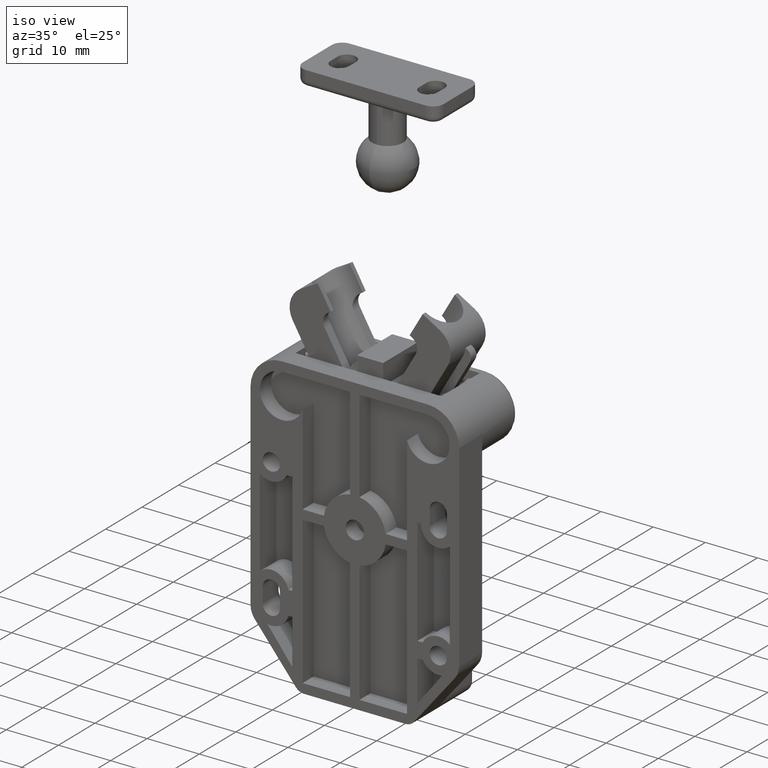
[diagram: clean part render]
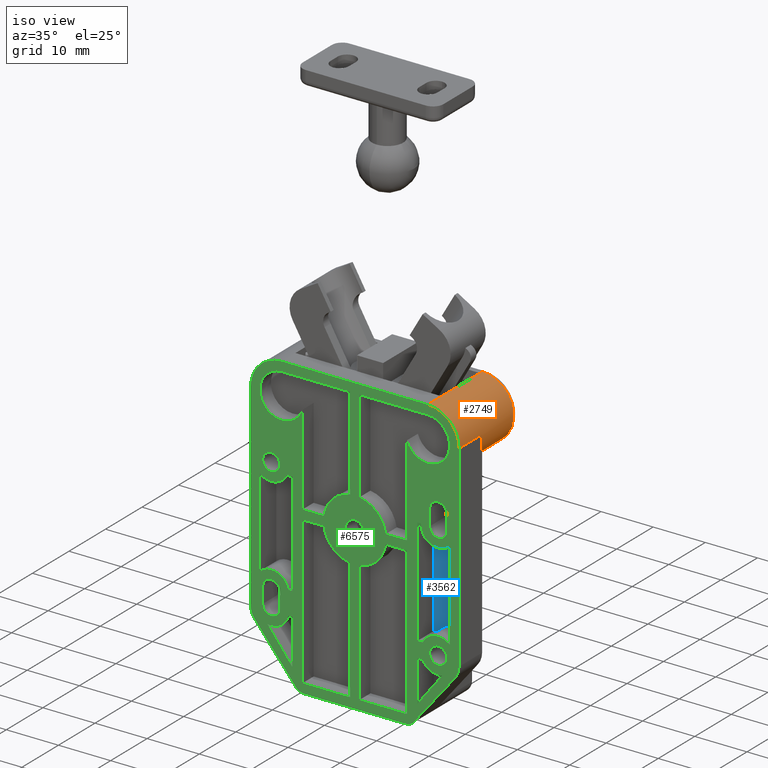
[diagram: same view with three faces highlighted in distinct colors, each labeled with its STEP entity id]
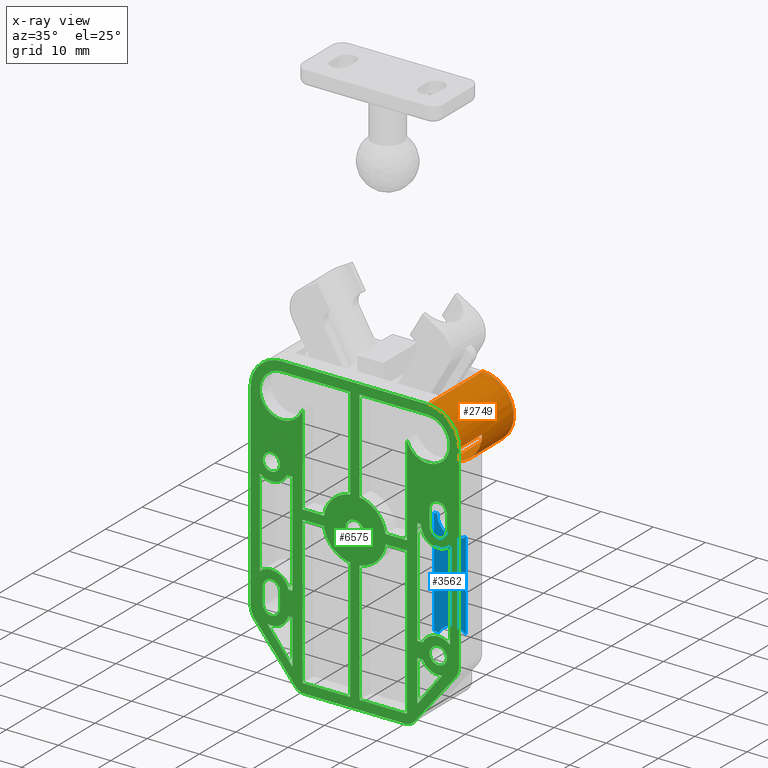
[diagram: x-ray of the same camera — body ghosted, the three highlighted faces saturated]
A machine part, iso view with three faces highlighted in distinct colors.
The next image is the same camera in x-ray (body ghosted, the three faces saturated) — at least one of them is partly hidden behind the body in this view.
Their STEP definitions:

[orange] entity #2749 — the highlighted cylindrical surface (partial cylindrical patch) has radius 6 mm, axis along (0, -1, -0).
#45 = VERTEX_POINT ( 'NONE', #1997 ) ;
#48 = DIRECTION ( 'NONE',  ( 0.0000000000000000000, 0.0000000000000000000, -1.000000000000000000 ) ) ;
#64 = CARTESIAN_POINT ( 'NONE',  ( 50.99960000000000100, 14.00000000000000000, 6.500000000000158100 ) ) ;
#182 = VERTEX_POINT ( 'NONE', #4506 ) ;
#351 = LINE ( 'NONE', #1067, #7697 ) ;
#404 = DIRECTION ( 'NONE',  ( -1.000000000000000000, 0.0000000000000000000, 0.0000000000000000000 ) ) ;
#420 = CIRCLE ( 'NONE', #7194, 6.000000000000116400 ) ;
#467 = ORIENTED_EDGE ( 'NONE', *, *, #6299, .F. ) ;
#646 = CARTESIAN_POINT ( 'NONE',  ( 50.99960000000000100, 14.00000000000000000, 0.0000000000000000000 ) ) ;
#726 = DIRECTION ( 'NONE',  ( 0.0000000000000000000, 0.0000000000000000000, -1.000000000000000000 ) ) ;
#768 = ORIENTED_EDGE ( 'NONE', *, *, #7652, .T. ) ;
#868 = VERTEX_POINT ( 'NONE', #5509 ) ;
#1067 = CARTESIAN_POINT ( 'NONE',  ( 50.99960000000000100, 20.00000000000000000, 6.500000000000158100 ) ) ;
#1131 = EDGE_CURVE ( 'NONE', #868, #7403, #420, .T. ) ;
#1249 = EDGE_CURVE ( 'NONE', #182, #7403, #2993, .T. ) ;
#1351 = DIRECTION ( 'NONE',  ( -1.000000000000000000, 0.0000000000000000000, 0.0000000000000000000 ) ) ;
#1364 = EDGE_CURVE ( 'NONE', #182, #45, #8276, .T. ) ;
#1439 = EDGE_LOOP ( 'NONE', ( #5055, #2593, #8249, #768, #8466, #5971, #467, #6947 ) ) ;
#1461 = EDGE_CURVE ( 'NONE', #5708, #7474, #2739, .T. ) ;
#1505 = CARTESIAN_POINT ( 'NONE',  ( 44.99959999999999400, 13.99999999999976400, 6.300000000000158800 ) ) ;
#1997 = CARTESIAN_POINT ( 'NONE',  ( 56.99960000000000100, 14.00000000000000000, 15.00000000000000000 ) ) ;
#2593 = ORIENTED_EDGE ( 'NONE', *, *, #1249, .F. ) ;
#2739 = LINE ( 'NONE', #7871, #7604 ) ;
#2749 = ADVANCED_FACE ( 'NONE', ( #2983 ), #6450, .T. ) ;
#2983 = FACE_OUTER_BOUND ( 'NONE', #1439, .T. ) ;
#2993 = LINE ( 'NONE', #3305, #6686 ) ;
#3112 = VERTEX_POINT ( 'NONE', #8073 ) ;
#3142 = DIRECTION ( 'NONE',  ( 0.0000000000000000000, 0.0000000000000000000, -1.000000000000000000 ) ) ;
#3305 = CARTESIAN_POINT ( 'NONE',  ( 44.99959999999998700, 14.00000000000021500, 16.00000000000000000 ) ) ;
#3609 = VECTOR ( 'NONE', #6650, 1000.000000000000000 ) ;
#3661 = VECTOR ( 'NONE', #726, 1000.000000000000000 ) ;
#3822 = CARTESIAN_POINT ( 'NONE',  ( 50.99959999999999400, 13.99999999999976400, 6.300000000000158800 ) ) ;
#3914 = CARTESIAN_POINT ( 'NONE',  ( 50.99960000000000100, 20.00000000000000000, 0.0000000000000000000 ) ) ;
#3952 = CARTESIAN_POINT ( 'NONE',  ( 56.99960000000000100, 14.00000000000000000, 0.0000000000000000000 ) ) ;
#3969 = EDGE_CURVE ( 'NONE', #5708, #3112, #6118, .T. ) ;
#4041 = VERTEX_POINT ( 'NONE', #3914 ) ;
#4298 = DIRECTION ( 'NONE',  ( 1.000000000000000000, 0.0000000000000000000, 0.0000000000000000000 ) ) ;
#4506 = CARTESIAN_POINT ( 'NONE',  ( 44.99959999999998700, 14.00000000000021500, 15.00000000000000000 ) ) ;
#4908 = DIRECTION ( 'NONE',  ( -1.000000000000000000, 0.0000000000000000000, 0.0000000000000000000 ) ) ;
#5055 = ORIENTED_EDGE ( 'NONE', *, *, #1131, .T. ) ;
#5323 = CARTESIAN_POINT ( 'NONE',  ( 50.99960000000000100, 14.00000000000000000, 15.00000000000000000 ) ) ;
#5471 = DIRECTION ( 'NONE',  ( 0.0000000000000000000, 0.0000000000000000000, -1.000000000000000000 ) ) ;
#5509 = CARTESIAN_POINT ( 'NONE',  ( 50.99960000000000100, 19.99999999999988300, 6.300000000000158800 ) ) ;
#5512 = LINE ( 'NONE', #8318, #3661 ) ;
#5602 = AXIS2_PLACEMENT_3D ( 'NONE', #5323, #7262, #404 ) ;
#5708 = VERTEX_POINT ( 'NONE', #7400 ) ;
#5945 = CARTESIAN_POINT ( 'NONE',  ( 56.99960000000000100, 14.00000000000000000, 14.24999999999999100 ) ) ;
#5971 = ORIENTED_EDGE ( 'NONE', *, *, #1461, .T. ) ;
#6118 = LINE ( 'NONE', #5945, #3609 ) ;
#6299 = EDGE_CURVE ( 'NONE', #4041, #7474, #7161, .T. ) ;
#6361 = DIRECTION ( 'NONE',  ( 0.0000000000000000000, -0.0000000000000000000, 1.000000000000000000 ) ) ;
#6450 = CYLINDRICAL_SURFACE ( 'NONE', #8313, 5.999999999999998200 ) ;
#6650 = DIRECTION ( 'NONE',  ( -0.0000000000000000000, -0.0000000000000000000, 1.000000000000000000 ) ) ;
#6686 = VECTOR ( 'NONE', #8708, 1000.000000000000000 ) ;
#6924 = AXIS2_PLACEMENT_3D ( 'NONE', #646, #5471, #1351 ) ;
#6947 = ORIENTED_EDGE ( 'NONE', *, *, #7007, .F. ) ;
#7007 = EDGE_CURVE ( 'NONE', #868, #4041, #351, .T. ) ;
#7161 = CIRCLE ( 'NONE', #6924, 5.999999999999998200 ) ;
#7179 = DIRECTION ( 'NONE',  ( 0.0000000000000000000, 0.0000000000000000000, -1.000000000000000000 ) ) ;
#7194 = AXIS2_PLACEMENT_3D ( 'NONE', #3822, #6361, #4298 ) ;
#7262 = DIRECTION ( 'NONE',  ( -0.0000000000000000000, -0.0000000000000000000, -1.000000000000000000 ) ) ;
#7400 = CARTESIAN_POINT ( 'NONE',  ( 56.99960000000000100, 14.00000000000000000, 3.749999999999996400 ) ) ;
#7403 = VERTEX_POINT ( 'NONE', #1505 ) ;
#7474 = VERTEX_POINT ( 'NONE', #3952 ) ;
#7604 = VECTOR ( 'NONE', #7179, 1000.000000000000000 ) ;
#7652 = EDGE_CURVE ( 'NONE', #45, #3112, #5512, .T. ) ;
#7697 = VECTOR ( 'NONE', #3142, 1000.000000000000000 ) ;
#7871 = CARTESIAN_POINT ( 'NONE',  ( 56.99960000000000100, 14.00000000000000000, 6.500000000000158100 ) ) ;
#8073 = CARTESIAN_POINT ( 'NONE',  ( 56.99960000000000100, 14.00000000000000000, 14.24999999999999100 ) ) ;
#8249 = ORIENTED_EDGE ( 'NONE', *, *, #1364, .T. ) ;
#8276 = CIRCLE ( 'NONE', #5602, 5.999999999999998200 ) ;
#8313 = AXIS2_PLACEMENT_3D ( 'NONE', #64, #48, #4908 ) ;
#8318 = CARTESIAN_POINT ( 'NONE',  ( 56.99960000000000100, 14.00000000000000000, 6.500000000000158100 ) ) ;
#8466 = ORIENTED_EDGE ( 'NONE', *, *, #3969, .F. ) ;
#8708 = DIRECTION ( 'NONE',  ( -0.0000000000000000000, -0.0000000000000000000, -1.000000000000000000 ) ) ;

[blue] entity #3562 — the highlighted planar face has unit normal (-0, 1, 0).
#78 = CARTESIAN_POINT ( 'NONE',  ( 15.50000000000000000, 12.00000000000000000, 4.500000000000089700 ) ) ;
#169 = CARTESIAN_POINT ( 'NONE',  ( 35.99960000000000100, 16.00000000000000000, 4.500000000000089700 ) ) ;
#435 = ORIENTED_EDGE ( 'NONE', *, *, #7764, .T. ) ;
#506 = DIRECTION ( 'NONE',  ( 0.0000000000000000000, -1.000000000000000000, 0.0000000000000000000 ) ) ;
#602 = CARTESIAN_POINT ( 'NONE',  ( 35.99960000000000100, 12.00000000000000000, 4.500000000000089700 ) ) ;
#691 = LINE ( 'NONE', #78, #7822 ) ;
#798 = EDGE_CURVE ( 'NONE', #6732, #5613, #2784, .T. ) ;
#866 = DIRECTION ( 'NONE',  ( 1.000000000000000000, 0.0000000000000000000, 0.0000000000000000000 ) ) ;
#992 = CARTESIAN_POINT ( 'NONE',  ( 14.00000000000000000, 16.00000000000000000, 4.500000000000089700 ) ) ;
#1064 = CARTESIAN_POINT ( 'NONE',  ( 35.99960000000000100, 16.00000000000000000, 4.500000000000089700 ) ) ;
#1081 = EDGE_CURVE ( 'NONE', #7297, #8146, #7997, .T. ) ;
#1291 = ORIENTED_EDGE ( 'NONE', *, *, #5797, .T. ) ;
#1373 = FACE_OUTER_BOUND ( 'NONE', #7819, .T. ) ;
#1413 = EDGE_CURVE ( 'NONE', #4561, #3436, #5988, .T. ) ;
#1414 = CIRCLE ( 'NONE', #6662, 3.350000000000019600 ) ;
#1497 = DIRECTION ( 'NONE',  ( 1.000000000000000000, 0.0000000000000000000, 0.0000000000000000000 ) ) ;
#1661 = ORIENTED_EDGE ( 'NONE', *, *, #1081, .T. ) ;
#1779 = CARTESIAN_POINT ( 'NONE',  ( 35.99960000000000100, 12.64999999999998400, 4.500000000000089700 ) ) ;
#2053 = CARTESIAN_POINT ( 'NONE',  ( 33.47323898066800000, 18.19999999999999900, 4.500000000000089700 ) ) ;
#2457 = CARTESIAN_POINT ( 'NONE',  ( 16.52636101933195100, 18.19999999999999900, 4.500000000000089700 ) ) ;
#2525 = VECTOR ( 'NONE', #506, 1000.000000000000000 ) ;
#2655 = DIRECTION ( 'NONE',  ( 1.000000000000000000, 0.0000000000000000000, 0.0000000000000000000 ) ) ;
#2687 = DIRECTION ( 'NONE',  ( 1.000000000000000000, 0.0000000000000000000, 0.0000000000000000000 ) ) ;
#2773 = EDGE_CURVE ( 'NONE', #5613, #7297, #8522, .T. ) ;
#2784 = CIRCLE ( 'NONE', #3374, 3.350000000000000500 ) ;
#3276 = CARTESIAN_POINT ( 'NONE',  ( 32.64959999999997800, 16.00000000000000000, 4.500000000000089700 ) ) ;
#3371 = CARTESIAN_POINT ( 'NONE',  ( 14.00000000000000000, 16.00000000000000000, 4.500000000000089700 ) ) ;
#3374 = AXIS2_PLACEMENT_3D ( 'NONE', #992, #4071, #2687 ) ;
#3436 = VERTEX_POINT ( 'NONE', #6673 ) ;
#3496 = CARTESIAN_POINT ( 'NONE',  ( 15.50000000000000000, 13.00458683984995800, 4.500000000000089700 ) ) ;
#3562 = ADVANCED_FACE ( 'NONE', ( #1373 ), #7524, .F. ) ;
#3796 = LINE ( 'NONE', #602, #7042 ) ;
#3891 = AXIS2_PLACEMENT_3D ( 'NONE', #3371, #8222, #4062 ) ;
#4062 = DIRECTION ( 'NONE',  ( 1.000000000000000000, 0.0000000000000000000, -0.0000000000000000000 ) ) ;
#4071 = DIRECTION ( 'NONE',  ( 0.0000000000000000000, -0.0000000000000000000, 1.000000000000000000 ) ) ;
#4561 = VERTEX_POINT ( 'NONE', #1779 ) ;
#5014 = DIRECTION ( 'NONE',  ( 0.0000000000000000000, -0.0000000000000000000, 1.000000000000000000 ) ) ;
#5049 = AXIS2_PLACEMENT_3D ( 'NONE', #1064, #5719, #2655 ) ;
#5285 = CARTESIAN_POINT ( 'NONE',  ( 35.99960000000000100, 12.65000000000000000, 4.500000000000089700 ) ) ;
#5381 = DIRECTION ( 'NONE',  ( -1.000000000000000000, 0.0000000000000000000, 0.0000000000000000000 ) ) ;
#5393 = ORIENTED_EDGE ( 'NONE', *, *, #798, .T. ) ;
#5600 = DIRECTION ( 'NONE',  ( 0.0000000000000000000, 1.000000000000000000, 0.0000000000000000000 ) ) ;
#5613 = VERTEX_POINT ( 'NONE', #2457 ) ;
#5719 = DIRECTION ( 'NONE',  ( 0.0000000000000000000, -0.0000000000000000000, 1.000000000000000000 ) ) ;
#5797 = EDGE_CURVE ( 'NONE', #3436, #8800, #3796, .T. ) ;
#5988 = LINE ( 'NONE', #5285, #2525 ) ;
#6662 = AXIS2_PLACEMENT_3D ( 'NONE', #169, #5014, #866 ) ;
#6673 = CARTESIAN_POINT ( 'NONE',  ( 35.99960000000000100, 12.00000000000000000, 4.500000000000089700 ) ) ;
#6732 = VERTEX_POINT ( 'NONE', #3496 ) ;
#6766 = EDGE_CURVE ( 'NONE', #8800, #6732, #691, .T. ) ;
#7042 = VECTOR ( 'NONE', #5381, 1000.000000000000000 ) ;
#7297 = VERTEX_POINT ( 'NONE', #2053 ) ;
#7390 = ORIENTED_EDGE ( 'NONE', *, *, #6766, .T. ) ;
#7524 = PLANE ( 'NONE',  #3891 ) ;
#7764 = EDGE_CURVE ( 'NONE', #8146, #4561, #1414, .T. ) ;
#7819 = EDGE_LOOP ( 'NONE', ( #5393, #8456, #1661, #435, #8703, #1291, #7390 ) ) ;
#7822 = VECTOR ( 'NONE', #5600, 1000.000000000000000 ) ;
#7997 = CIRCLE ( 'NONE', #5049, 3.350000000000019600 ) ;
#8100 = VECTOR ( 'NONE', #1497, 1000.000000000000000 ) ;
#8146 = VERTEX_POINT ( 'NONE', #3276 ) ;
#8222 = DIRECTION ( 'NONE',  ( 0.0000000000000000000, -0.0000000000000000000, 1.000000000000000000 ) ) ;
#8404 = CARTESIAN_POINT ( 'NONE',  ( 16.52636101933195100, 18.19999999999999900, 4.500000000000089700 ) ) ;
#8456 = ORIENTED_EDGE ( 'NONE', *, *, #2773, .T. ) ;
#8522 = LINE ( 'NONE', #8404, #8100 ) ;
#8703 = ORIENTED_EDGE ( 'NONE', *, *, #1413, .T. ) ;
#8800 = VERTEX_POINT ( 'NONE', #8869 ) ;
#8869 = CARTESIAN_POINT ( 'NONE',  ( 15.50000000000000000, 12.00000000000000000, 4.500000000000089700 ) ) ;

[green] entity #6575 — the highlighted planar face has unit normal (0, -1, -0).
#17 = ORIENTED_EDGE ( 'NONE', *, *, #4462, .F. ) ;
#39 = DIRECTION ( 'NONE',  ( 0.0000000000000000000, 0.0000000000000000000, -1.000000000000000000 ) ) ;
#40 = CARTESIAN_POINT ( 'NONE',  ( 14.00000000000000000, -15.99999999999975100, 0.0000000000000000000 ) ) ;
#47 = ORIENTED_EDGE ( 'NONE', *, *, #3544, .F. ) ;
#66 = EDGE_CURVE ( 'NONE', #6678, #2012, #2782, .T. ) ;
#68 = EDGE_CURVE ( 'NONE', #4791, #6971, #6471, .T. ) ;
#72 = CARTESIAN_POINT ( 'NONE',  ( 10.98538064580037200, -19.21702782616135600, 0.0000000000000000000 ) ) ;
#82 = DIRECTION ( 'NONE',  ( -1.000000000000000000, 0.0000000000000000000, 0.0000000000000000000 ) ) ;
#118 = ORIENTED_EDGE ( 'NONE', *, *, #8340, .F. ) ;
#120 = VECTOR ( 'NONE', #2224, 1000.000000000000000 ) ;
#138 = VECTOR ( 'NONE', #3526, 1000.000000000000000 ) ;
#141 = EDGE_CURVE ( 'NONE', #757, #6994, #3974, .T. ) ;
#153 = LINE ( 'NONE', #1648, #2010 ) ;
#160 = CARTESIAN_POINT ( 'NONE',  ( 14.00000000000000000, -16.00000000000000000, -0.0000000000000000000 ) ) ;
#217 = EDGE_CURVE ( 'NONE', #5777, #8439, #8987, .T. ) ;
#227 = CIRCLE ( 'NONE', #7222, 1.650000000000010800 ) ;
#234 = CIRCLE ( 'NONE', #3711, 2.000000000000029300 ) ;
#262 = CARTESIAN_POINT ( 'NONE',  ( 4.586200000000000700, 12.00000000000000000, 0.0000000000000000000 ) ) ;
#263 = ORIENTED_EDGE ( 'NONE', *, *, #4990, .T. ) ;
#277 = CARTESIAN_POINT ( 'NONE',  ( 32.39960000000000000, 5.932115979985550100, 0.0000000000000000000 ) ) ;
#279 = EDGE_CURVE ( 'NONE', #8817, #8782, #1618, .T. ) ;
#284 = DIRECTION ( 'NONE',  ( 1.000000000000000000, 0.0000000000000000000, 0.0000000000000000000 ) ) ;
#297 = DIRECTION ( 'NONE',  ( 0.0000000000000000000, 0.0000000000000000000, -1.000000000000000000 ) ) ;
#323 = VERTEX_POINT ( 'NONE', #5722 ) ;
#339 = CARTESIAN_POINT ( 'NONE',  ( 17.00000000000000000, -17.64999999999999900, 0.0000000000000000000 ) ) ;
#381 = AXIS2_PLACEMENT_3D ( 'NONE', #7612, #3449, #8317 ) ;
#392 = DIRECTION ( 'NONE',  ( -0.0000000000000000000, -0.0000000000000000000, -1.000000000000000000 ) ) ;
#428 = VERTEX_POINT ( 'NONE', #1014 ) ;
#440 = VECTOR ( 'NONE', #1211, 999.9999999999998900 ) ;
#464 = DIRECTION ( 'NONE',  ( 0.0000000000000000000, -1.000000000000000000, 0.0000000000000000000 ) ) ;
#501 = CARTESIAN_POINT ( 'NONE',  ( 30.59960000000000200, -10.00000000000000000, -0.0000000000000000000 ) ) ;
#567 = CIRCLE ( 'NONE', #6351, 1.650000000000099400 ) ;
#573 = VERTEX_POINT ( 'NONE', #1582 ) ;
#580 = EDGE_CURVE ( 'NONE', #3814, #3215, #4524, .T. ) ;
#582 = AXIS2_PLACEMENT_3D ( 'NONE', #7166, #5763, #3708 ) ;
#611 = AXIS2_PLACEMENT_3D ( 'NONE', #7368, #3217, #8080 ) ;
#618 = DIRECTION ( 'NONE',  ( 0.0000000000000000000, -0.0000000000000000000, 1.000000000000000000 ) ) ;
#619 = CARTESIAN_POINT ( 'NONE',  ( 33.47323898066800000, 18.19999999999999900, 0.0000000000000000000 ) ) ;
#621 = EDGE_CURVE ( 'NONE', #1625, #7180, #855, .T. ) ;
#639 = CARTESIAN_POINT ( 'NONE',  ( 17.74999999999999600, -12.73503445653710000, 0.0000000000000000000 ) ) ;
#646 = CARTESIAN_POINT ( 'NONE',  ( 50.99960000000000100, 14.00000000000000000, 0.0000000000000000000 ) ) ;
#647 = VERTEX_POINT ( 'NONE', #8880 ) ;
#649 = VECTOR ( 'NONE', #3669, 1000.000000000000000 ) ;
#669 = AXIS2_PLACEMENT_3D ( 'NONE', #2653, #7491, #3342 ) ;
#677 = FACE_BOUND ( 'NONE', #3146, .T. ) ;
#696 = ORIENTED_EDGE ( 'NONE', *, *, #7409, .T. ) ;
#732 = CARTESIAN_POINT ( 'NONE',  ( 15.50000000000000000, 12.00000000000000000, 0.0000000000000000000 ) ) ;
#734 = DIRECTION ( 'NONE',  ( 1.000000000000000000, 0.0000000000000000000, 0.0000000000000000000 ) ) ;
#742 = VERTEX_POINT ( 'NONE', #3719 ) ;
#743 = DIRECTION ( 'NONE',  ( 1.000000000000000000, -0.0000000000000000000, -0.0000000000000000000 ) ) ;
#753 = ORIENTED_EDGE ( 'NONE', *, *, #6142, .F. ) ;
#757 = VERTEX_POINT ( 'NONE', #7875 ) ;
#781 = CIRCLE ( 'NONE', #3643, 5.999999999999963600 ) ;
#793 = VECTOR ( 'NONE', #8300, 1000.000000000000000 ) ;
#842 = ORIENTED_EDGE ( 'NONE', *, *, #4517, .F. ) ;
#852 = DIRECTION ( 'NONE',  ( 1.000000000000000000, 0.0000000000000000000, 0.0000000000000000000 ) ) ;
#854 = VERTEX_POINT ( 'NONE', #3078 ) ;
#855 = LINE ( 'NONE', #277, #649 ) ;
#870 = VECTOR ( 'NONE', #2030, 1000.000000000000000 ) ;
#878 = FACE_BOUND ( 'NONE', #2163, .T. ) ;
#937 = DIRECTION ( 'NONE',  ( 1.000000000000000000, -1.225952986556047300E-016, 0.0000000000000000000 ) ) ;
#942 = AXIS2_PLACEMENT_3D ( 'NONE', #4037, #5844, #4061 ) ;
#945 = ORIENTED_EDGE ( 'NONE', *, *, #580, .F. ) ;
#949 = EDGE_CURVE ( 'NONE', #7180, #3660, #3528, .T. ) ;
#972 = DIRECTION ( 'NONE',  ( -0.0000000000000000000, -0.0000000000000000000, -1.000000000000000000 ) ) ;
#973 = ORIENTED_EDGE ( 'NONE', *, *, #5790, .F. ) ;
#982 = EDGE_CURVE ( 'NONE', #6948, #2560, #1503, .T. ) ;
#986 = VECTOR ( 'NONE', #3659, 1000.000000000000000 ) ;
#1014 = CARTESIAN_POINT ( 'NONE',  ( 35.99960000000000100, 12.00000000000000000, 0.0000000000000000000 ) ) ;
#1026 = VECTOR ( 'NONE', #2962, 1000.000000000000000 ) ;
#1039 = VERTEX_POINT ( 'NONE', #1577 ) ;
#1049 = CARTESIAN_POINT ( 'NONE',  ( 35.99960000000000100, 12.00000000000000000, 0.0000000000000000000 ) ) ;
#1051 = CARTESIAN_POINT ( 'NONE',  ( 31.49960000000000100, 0.0000000000000000000, 0.0000000000000000000 ) ) ;
#1059 = DIRECTION ( 'NONE',  ( -0.0000000000000000000, -0.0000000000000000000, -1.000000000000000000 ) ) ;
#1116 = FACE_BOUND ( 'NONE', #4548, .T. ) ;
#1119 = VECTOR ( 'NONE', #8111, 1000.000000000000000 ) ;
#1126 = VECTOR ( 'NONE', #8072, 1000.000000000000000 ) ;
#1133 = AXIS2_PLACEMENT_3D ( 'NONE', #7592, #2729, #4807 ) ;
#1137 = VERTEX_POINT ( 'NONE', #2346 ) ;
#1211 = DIRECTION ( 'NONE',  ( 0.7762936646175303500, -0.6303714351671445600, 0.0000000000000000000 ) ) ;
#1222 = DIRECTION ( 'NONE',  ( 0.0000000000000000000, -0.0000000000000000000, 1.000000000000000000 ) ) ;
#1223 = VERTEX_POINT ( 'NONE', #5683 ) ;
#1235 = EDGE_LOOP ( 'NONE', ( #7226, #2809, #4351, #8966, #1760, #5589, #8457 ) ) ;
#1241 = CIRCLE ( 'NONE', #5298, 3.350000000000007600 ) ;
#1299 = CARTESIAN_POINT ( 'NONE',  ( 2.299599999999999000, 0.9000000000000032400, 0.0000000000000000000 ) ) ;
#1307 = EDGE_CURVE ( 'NONE', #5490, #1223, #3387, .T. ) ;
#1316 = CARTESIAN_POINT ( 'NONE',  ( 46.79960000000001200, 14.00000000000000000, -1.040949779275247200E-015 ) ) ;
#1322 = LINE ( 'NONE', #5403, #4758 ) ;
#1329 = LINE ( 'NONE', #2291, #6621 ) ;
#1332 = CARTESIAN_POINT ( 'NONE',  ( 35.99960000000000100, 16.00000000000000000, 0.0000000000000000000 ) ) ;
#1337 = EDGE_CURVE ( 'NONE', #5622, #8817, #6855, .T. ) ;
#1344 = CARTESIAN_POINT ( 'NONE',  ( 10.73454896379962000, 16.74788336669434900, 0.0000000000000000000 ) ) ;
#1351 = DIRECTION ( 'NONE',  ( -1.000000000000000000, 0.0000000000000000000, 0.0000000000000000000 ) ) ;
#1400 = CARTESIAN_POINT ( 'NONE',  ( 30.59960000000000200, 10.00000000000000000, 0.0000000000000000000 ) ) ;
#1447 = VERTEX_POINT ( 'NONE', #1831 ) ;
#1458 = ORIENTED_EDGE ( 'NONE', *, *, #6570, .F. ) ;
#1466 = CARTESIAN_POINT ( 'NONE',  ( 55.19959999999999000, 13.99999999999997200, 0.0000000000000000000 ) ) ;
#1468 = CARTESIAN_POINT ( 'NONE',  ( 32.39960000000000000, 5.932115979985551000, 0.0000000000000000000 ) ) ;
#1484 = CARTESIAN_POINT ( 'NONE',  ( 37.43171597998549800, 0.9000000000000000200, 0.0000000000000000000 ) ) ;
#1495 = ORIENTED_EDGE ( 'NONE', *, *, #68, .F. ) ;
#1502 = VERTEX_POINT ( 'NONE', #4569 ) ;
#1503 = CIRCLE ( 'NONE', #2265, 1.649999999999901500 ) ;
#1508 = ORIENTED_EDGE ( 'NONE', *, *, #7654, .T. ) ;
#1542 = VECTOR ( 'NONE', #464, 1000.000000000000000 ) ;
#1548 = LINE ( 'NONE', #5243, #6840 ) ;
#1549 = VERTEX_POINT ( 'NONE', #2664 ) ;
#1550 = LINE ( 'NONE', #5001, #2728 ) ;
#1569 = DIRECTION ( 'NONE',  ( 1.000000000000000000, -9.319301845865341300E-018, 0.0000000000000000000 ) ) ;
#1577 = CARTESIAN_POINT ( 'NONE',  ( 17.75000000000000000, -12.00000000000000000, -0.0000000000000000000 ) ) ;
#1582 = CARTESIAN_POINT ( 'NONE',  ( 1.238857129665727600, -11.30258732923529400, 0.0000000000000000000 ) ) ;
#1618 = CIRCLE ( 'NONE', #4637, 3.350000000000019600 ) ;
#1625 = VERTEX_POINT ( 'NONE', #1468 ) ;
#1648 = CARTESIAN_POINT ( 'NONE',  ( 12.50000000000000000, 13.00458683984995800, 0.0000000000000000000 ) ) ;
#1651 = ORIENTED_EDGE ( 'NONE', *, *, #4171, .F. ) ;
#1653 = CIRCLE ( 'NONE', #8958, 1.650000000000010800 ) ;
#1655 = ORIENTED_EDGE ( 'NONE', *, *, #6486, .F. ) ;
#1702 = CIRCLE ( 'NONE', #4398, 1.749999999999987600 ) ;
#1708 = EDGE_CURVE ( 'NONE', #8871, #7888, #7281, .T. ) ;
#1726 = ORIENTED_EDGE ( 'NONE', *, *, #7812, .T. ) ;
#1736 = DIRECTION ( 'NONE',  ( 1.000000000000000000, 0.0000000000000000000, 0.0000000000000000000 ) ) ;
#1742 = ORIENTED_EDGE ( 'NONE', *, *, #141, .F. ) ;
#1756 = LINE ( 'NONE', #6122, #7274 ) ;
#1759 = LINE ( 'NONE', #6657, #1542 ) ;
#1760 = ORIENTED_EDGE ( 'NONE', *, *, #621, .F. ) ;
#1772 = CARTESIAN_POINT ( 'NONE',  ( 16.52636101933195100, 18.19999999999999900, 0.0000000000000000000 ) ) ;
#1794 = CIRCLE ( 'NONE', #7664, 5.999999999999963600 ) ;
#1797 = CARTESIAN_POINT ( 'NONE',  ( 37.49960000000000100, -12.00000000000000000, -0.0000000000000000000 ) ) ;
#1805 = CIRCLE ( 'NONE', #669, 1.650000000000012600 ) ;
#1831 = CARTESIAN_POINT ( 'NONE',  ( 1.238857129665727600, 11.30258732923529400, 0.0000000000000000000 ) ) ;
#1842 = ORIENTED_EDGE ( 'NONE', *, *, #1916, .F. ) ;
#1845 = VECTOR ( 'NONE', #8701, 1000.000000000000000 ) ;
#1910 = DIRECTION ( 'NONE',  ( 0.0000000000000000000, 0.0000000000000000000, -1.000000000000000000 ) ) ;
#1914 = CARTESIAN_POINT ( 'NONE',  ( 32.39960000000000000, 10.00000000000000000, 0.0000000000000000000 ) ) ;
#1916 = EDGE_CURVE ( 'NONE', #5419, #573, #234, .T. ) ;
#1964 = EDGE_LOOP ( 'NONE', ( #3081, #6605, #8618, #2859, #2429, #4776, #7665 ) ) ;
#1988 = DIRECTION ( 'NONE',  ( 1.000000000000000000, 0.0000000000000000000, 0.0000000000000000000 ) ) ;
#1992 = LINE ( 'NONE', #2856, #138 ) ;
#2010 = VECTOR ( 'NONE', #7185, 1000.000000000000000 ) ;
#2011 = CARTESIAN_POINT ( 'NONE',  ( 0.4995999999999958800, -20.00000000000000000, 0.0000000000000000000 ) ) ;
#2012 = VERTEX_POINT ( 'NONE', #6772 ) ;
#2020 = CARTESIAN_POINT ( 'NONE',  ( 17.00000000000000000, -15.99999999999975100, 0.0000000000000000000 ) ) ;
#2030 = DIRECTION ( 'NONE',  ( -0.0000000000000000000, -1.000000000000000000, -0.0000000000000000000 ) ) ;
#2045 = DIRECTION ( 'NONE',  ( -0.0000000000000000000, -0.0000000000000000000, -1.000000000000000000 ) ) ;
#2054 = CARTESIAN_POINT ( 'NONE',  ( 39.00000000000000000, -15.99999999999975100, 0.0000000000000000000 ) ) ;
#2061 = AXIS2_PLACEMENT_3D ( 'NONE', #6259, #2123, #6963 ) ;
#2105 = CARTESIAN_POINT ( 'NONE',  ( 36.00000000000000000, 16.00000000000024900, 0.0000000000000000000 ) ) ;
#2123 = DIRECTION ( 'NONE',  ( -0.0000000000000000000, -0.0000000000000000000, -1.000000000000000000 ) ) ;
#2139 = CARTESIAN_POINT ( 'NONE',  ( 15.50000000000000000, 13.00458683984995800, 0.0000000000000000000 ) ) ;
#2160 = EDGE_LOOP ( 'NONE', ( #6485, #3887 ) ) ;
#2163 = EDGE_LOOP ( 'NONE', ( #8720, #5745, #8312, #17, #2287 ) ) ;
#2169 = EDGE_CURVE ( 'NONE', #6971, #4971, #7940, .T. ) ;
#2181 = CARTESIAN_POINT ( 'NONE',  ( 2.299599999999999000, -0.8999999999999998000, -0.0000000000000000000 ) ) ;
#2218 = CARTESIAN_POINT ( 'NONE',  ( 2.299599999999999000, 0.9000000000000032400, 0.0000000000000000000 ) ) ;
#2224 = DIRECTION ( 'NONE',  ( 0.0000000000000000000, 1.000000000000000000, 0.0000000000000000000 ) ) ;
#2252 = EDGE_CURVE ( 'NONE', #1447, #5490, #5439, .T. ) ;
#2265 = AXIS2_PLACEMENT_3D ( 'NONE', #7195, #2321, #7030 ) ;
#2287 = ORIENTED_EDGE ( 'NONE', *, *, #6266, .F. ) ;
#2291 = CARTESIAN_POINT ( 'NONE',  ( 2.299599999999999000, 10.00000000000000400, 0.0000000000000000000 ) ) ;
#2293 = EDGE_CURVE ( 'NONE', #3215, #8879, #8930, .T. ) ;
#2303 = ORIENTED_EDGE ( 'NONE', *, *, #5192, .F. ) ;
#2314 = ORIENTED_EDGE ( 'NONE', *, *, #8905, .F. ) ;
#2321 = DIRECTION ( 'NONE',  ( 0.0000000000000000000, 0.0000000000000000000, -1.000000000000000000 ) ) ;
#2322 = EDGE_CURVE ( 'NONE', #8965, #6417, #5226, .T. ) ;
#2327 = DIRECTION ( 'NONE',  ( -1.000000000000000000, 0.0000000000000000000, 0.0000000000000000000 ) ) ;
#2346 = CARTESIAN_POINT ( 'NONE',  ( 39.00000000000000000, 17.65000000000002700, 0.0000000000000000000 ) ) ;
#2349 = CARTESIAN_POINT ( 'NONE',  ( 49.71897515251344400, -10.00000000000000000, -1.040949779275246800E-015 ) ) ;
#2350 = VERTEX_POINT ( 'NONE', #8601 ) ;
#2411 = VECTOR ( 'NONE', #8385, 1000.000000000000000 ) ;
#2429 = ORIENTED_EDGE ( 'NONE', *, *, #8017, .F. ) ;
#2460 = VERTEX_POINT ( 'NONE', #6654 ) ;
#2467 = AXIS2_PLACEMENT_3D ( 'NONE', #40, #4854, #734 ) ;
#2502 = FACE_BOUND ( 'NONE', #1964, .T. ) ;
#2510 = EDGE_CURVE ( 'NONE', #8251, #6063, #1653, .T. ) ;
#2538 = ORIENTED_EDGE ( 'NONE', *, *, #7051, .F. ) ;
#2543 = CARTESIAN_POINT ( 'NONE',  ( 17.00000000000000000, -15.99999999999975100, 0.0000000000000000000 ) ) ;
#2560 = VERTEX_POINT ( 'NONE', #5967 ) ;
#2600 = VERTEX_POINT ( 'NONE', #4697 ) ;
#2602 = VERTEX_POINT ( 'NONE', #7487 ) ;
#2636 = VERTEX_POINT ( 'NONE', #2669 ) ;
#2647 = DIRECTION ( 'NONE',  ( 0.0000000000000000000, 0.0000000000000000000, -1.000000000000000000 ) ) ;
#2653 = CARTESIAN_POINT ( 'NONE',  ( 39.00000000000000000, -15.99999999999975100, 0.0000000000000000000 ) ) ;
#2660 = LINE ( 'NONE', #8751, #4708 ) ;
#2661 = DIRECTION ( 'NONE',  ( 0.0000000000000000000, -0.0000000000000000000, 1.000000000000000000 ) ) ;
#2664 = CARTESIAN_POINT ( 'NONE',  ( 30.59960000000000200, -10.00000000000000000, -0.0000000000000000000 ) ) ;
#2665 = EDGE_CURVE ( 'NONE', #6417, #1625, #781, .T. ) ;
#2669 = CARTESIAN_POINT ( 'NONE',  ( 25.56748402001442200, 0.8999999999999959100, 0.0000000000000000000 ) ) ;
#2680 = EDGE_CURVE ( 'NONE', #2560, #4386, #3416, .T. ) ;
#2693 = VECTOR ( 'NONE', #2327, 1000.000000000000000 ) ;
#2698 = DIRECTION ( 'NONE',  ( 1.000000000000000000, 0.0000000000000000000, 0.0000000000000000000 ) ) ;
#2711 = CARTESIAN_POINT ( 'NONE',  ( 39.00000000000000000, 14.35000000000019900, 0.0000000000000000000 ) ) ;
#2718 = FACE_BOUND ( 'NONE', #2160, .T. ) ;
#2719 = CIRCLE ( 'NONE', #7944, 3.350000000000000500 ) ;
#2728 = VECTOR ( 'NONE', #1569, 1000.000000000000000 ) ;
#2729 = DIRECTION ( 'NONE',  ( 0.0000000000000000000, -0.0000000000000000000, 1.000000000000000000 ) ) ;
#2748 = DIRECTION ( 'NONE',  ( -1.000000000000000000, 0.0000000000000000000, 0.0000000000000000000 ) ) ;
#2779 = DIRECTION ( 'NONE',  ( -1.000000000000000000, 0.0000000000000000000, 0.0000000000000000000 ) ) ;
#2782 = LINE ( 'NONE', #6807, #8326 ) ;
#2809 = ORIENTED_EDGE ( 'NONE', *, *, #8524, .F. ) ;
#2856 = CARTESIAN_POINT ( 'NONE',  ( 55.19960000000000400, 10.00000000000000000, 0.0000000000000000000 ) ) ;
#2859 = ORIENTED_EDGE ( 'NONE', *, *, #6625, .F. ) ;
#2886 = EDGE_LOOP ( 'NONE', ( #3357, #2538, #3781, #4523, #2303 ) ) ;
#2892 = EDGE_CURVE ( 'NONE', #6994, #757, #1702, .T. ) ;
#2895 = ORIENTED_EDGE ( 'NONE', *, *, #2252, .T. ) ;
#2902 = EDGE_LOOP ( 'NONE', ( #5829, #945, #2314, #6427, #7472, #7259, #1651 ) ) ;
#2918 = CARTESIAN_POINT ( 'NONE',  ( 17.75000000000000000, -12.00000000000000000, -0.0000000000000000000 ) ) ;
#2935 = LINE ( 'NONE', #8029, #1126 ) ;
#2938 = VECTOR ( 'NONE', #7891, 1000.000000000000000 ) ;
#2942 = CIRCLE ( 'NONE', #381, 3.349999999999991700 ) ;
#2959 = ORIENTED_EDGE ( 'NONE', *, *, #5449, .F. ) ;
#2960 = AXIS2_PLACEMENT_3D ( 'NONE', #5910, #392, #8684 ) ;
#2962 = DIRECTION ( 'NONE',  ( 1.000000000000000000, 9.251858538542962800E-015, 0.0000000000000000000 ) ) ;
#3006 = CARTESIAN_POINT ( 'NONE',  ( 17.00000000000000000, -16.00000000000000000, -0.0000000000000000000 ) ) ;
#3023 = DIRECTION ( 'NONE',  ( -0.0000000000000000000, -0.0000000000000000000, -1.000000000000000000 ) ) ;
#3049 = ORIENTED_EDGE ( 'NONE', *, *, #8635, .T. ) ;
#3078 = CARTESIAN_POINT ( 'NONE',  ( 12.50000000000000400, 13.00458683984995600, -0.0000000000000000000 ) ) ;
#3081 = ORIENTED_EDGE ( 'NONE', *, *, #7192, .F. ) ;
#3110 = ORIENTED_EDGE ( 'NONE', *, *, #3517, .F. ) ;
#3117 = CARTESIAN_POINT ( 'NONE',  ( 12.34999999999998900, 16.00000000000024900, 0.0000000000000000000 ) ) ;
#3146 = EDGE_LOOP ( 'NONE', ( #263, #696, #3688, #4306, #3049 ) ) ;
#3161 = ORIENTED_EDGE ( 'NONE', *, *, #7683, .F. ) ;
#3200 = VECTOR ( 'NONE', #6812, 1000.000000000000000 ) ;
#3215 = VERTEX_POINT ( 'NONE', #7513 ) ;
#3217 = DIRECTION ( 'NONE',  ( 0.0000000000000000000, -0.0000000000000000000, 1.000000000000000000 ) ) ;
#3228 = CARTESIAN_POINT ( 'NONE',  ( 2.499600000000025800, -9.750000000000199000, 0.0000000000000000000 ) ) ;
#3232 = DIRECTION ( 'NONE',  ( 1.000000000000000000, 0.0000000000000000000, 0.0000000000000000000 ) ) ;
#3239 = VERTEX_POINT ( 'NONE', #1316 ) ;
#3248 = VECTOR ( 'NONE', #4174, 1000.000000000000000 ) ;
#3291 = CARTESIAN_POINT ( 'NONE',  ( 13.25000000000000000, -12.00000000000000000, -0.0000000000000000000 ) ) ;
#3300 = LINE ( 'NONE', #4866, #3495 ) ;
#3337 = VECTOR ( 'NONE', #5139, 1000.000000000000000 ) ;
#3342 = DIRECTION ( 'NONE',  ( -1.000000000000000000, 0.0000000000000000000, 0.0000000000000000000 ) ) ;
#3350 = DIRECTION ( 'NONE',  ( 0.0000000000000000000, -0.0000000000000000000, 1.000000000000000000 ) ) ;
#3357 = ORIENTED_EDGE ( 'NONE', *, *, #5537, .F. ) ;
#3358 = CARTESIAN_POINT ( 'NONE',  ( 55.19959999999999000, -13.99999999999997200, 0.0000000000000000000 ) ) ;
#3387 = CIRCLE ( 'NONE', #3752, 3.499999999999999600 ) ;
#3416 = CIRCLE ( 'NONE', #5992, 1.649999999999901500 ) ;
#3422 = EDGE_CURVE ( 'NONE', #323, #1502, #2660, .T. ) ;
#3430 = EDGE_LOOP ( 'NONE', ( #5284, #3161, #7577, #2959, #1655 ) ) ;
#3435 = LINE ( 'NONE', #3827, #1845 ) ;
#3449 = DIRECTION ( 'NONE',  ( 0.0000000000000000000, -0.0000000000000000000, 1.000000000000000000 ) ) ;
#3454 = VECTOR ( 'NONE', #6542, 1000.000000000000000 ) ;
#3477 = CARTESIAN_POINT ( 'NONE',  ( 49.71897515251344400, 10.00000000000000700, -1.040949779275247200E-015 ) ) ;
#3491 = CARTESIAN_POINT ( 'NONE',  ( 0.4995999999999958800, 20.00000000000000000, 0.0000000000000000000 ) ) ;
#3495 = VECTOR ( 'NONE', #743, 1000.000000000000000 ) ;
#3508 = CARTESIAN_POINT ( 'NONE',  ( 55.19960000000000400, -10.00000000000000000, -0.0000000000000000000 ) ) ;
#3517 = EDGE_CURVE ( 'NONE', #2460, #8702, #1805, .T. ) ;
#3524 = CARTESIAN_POINT ( 'NONE',  ( 2.299599999999999000, -10.00000000000000000, 0.0000000000000000000 ) ) ;
#3526 = DIRECTION ( 'NONE',  ( 0.0000000000000000000, -1.000000000000000000, 0.0000000000000000000 ) ) ;
#3528 = LINE ( 'NONE', #4251, #3337 ) ;
#3544 = EDGE_CURVE ( 'NONE', #5410, #7950, #8954, .T. ) ;
#3548 = DIRECTION ( 'NONE',  ( 0.0000000000000000000, 0.0000000000000000000, -1.000000000000000000 ) ) ;
#3553 = CARTESIAN_POINT ( 'NONE',  ( 32.39960000000000000, -10.00000000000000000, -0.0000000000000000000 ) ) ;
#3579 = VECTOR ( 'NONE', #7264, 1000.000000000000000 ) ;
#3599 = EDGE_CURVE ( 'NONE', #3660, #3239, #8297, .T. ) ;
#3601 = CARTESIAN_POINT ( 'NONE',  ( 0.4995999999999958800, -9.750000000000199000, 0.0000000000000000000 ) ) ;
#3608 = CARTESIAN_POINT ( 'NONE',  ( 35.99960000000000100, 12.64999999999998400, 0.0000000000000000000 ) ) ;
#3643 = AXIS2_PLACEMENT_3D ( 'NONE', #4084, #8955, #4787 ) ;
#3659 = DIRECTION ( 'NONE',  ( 0.0000000000000000000, -1.000000000000000000, -0.0000000000000000000 ) ) ;
#3660 = VERTEX_POINT ( 'NONE', #3477 ) ;
#3665 = AXIS2_PLACEMENT_3D ( 'NONE', #6795, #2661, #7512 ) ;
#3669 = DIRECTION ( 'NONE',  ( 0.0000000000000000000, 1.000000000000000000, 0.0000000000000000000 ) ) ;
#3671 = LINE ( 'NONE', #7928, #3454 ) ;
#3688 = ORIENTED_EDGE ( 'NONE', *, *, #5455, .T. ) ;
#3701 = CARTESIAN_POINT ( 'NONE',  ( 10.64999999999999300, -16.00000000000000000, 0.0000000000000000000 ) ) ;
#3704 = DIRECTION ( 'NONE',  ( 1.000000000000000000, 0.0000000000000000000, 0.0000000000000000000 ) ) ;
#3708 = DIRECTION ( 'NONE',  ( -1.000000000000000000, 0.0000000000000000000, -0.0000000000000000000 ) ) ;
#3711 = AXIS2_PLACEMENT_3D ( 'NONE', #3228, #8089, #3923 ) ;
#3719 = CARTESIAN_POINT ( 'NONE',  ( 55.19960000000000400, -0.9000000000000000200, -0.0000000000000000000 ) ) ;
#3752 = AXIS2_PLACEMENT_3D ( 'NONE', #8613, #4434, #4350 ) ;
#3760 = ORIENTED_EDGE ( 'NONE', *, *, #8408, .T. ) ;
#3764 = AXIS2_PLACEMENT_3D ( 'NONE', #5354, #1222, #6035 ) ;
#3778 = CARTESIAN_POINT ( 'NONE',  ( 46.79960000000000500, -14.00000000000000000, -1.040949779275246800E-015 ) ) ;
#3781 = ORIENTED_EDGE ( 'NONE', *, *, #6109, .F. ) ;
#3811 = CARTESIAN_POINT ( 'NONE',  ( 32.39960000000000000, -5.932115979985550100, -0.0000000000000000000 ) ) ;
#3814 = VERTEX_POINT ( 'NONE', #7086 ) ;
#3827 = CARTESIAN_POINT ( 'NONE',  ( 50.99960000000000100, -17.64999999999999900, -0.0000000000000000000 ) ) ;
#3836 = CARTESIAN_POINT ( 'NONE',  ( 16.52636101933195100, 18.19999999999999900, 0.0000000000000000000 ) ) ;
#3887 = ORIENTED_EDGE ( 'NONE', *, *, #6613, .F. ) ;
#3901 = LINE ( 'NONE', #2711, #7376 ) ;
#3909 = ORIENTED_EDGE ( 'NONE', *, *, #5233, .F. ) ;
#3910 = CIRCLE ( 'NONE', #5138, 3.350000000000007600 ) ;
#3914 = CARTESIAN_POINT ( 'NONE',  ( 50.99960000000000100, 20.00000000000000000, 0.0000000000000000000 ) ) ;
#3923 = DIRECTION ( 'NONE',  ( -1.000000000000000000, 0.0000000000000000000, 0.0000000000000000000 ) ) ;
#3935 = LINE ( 'NONE', #262, #7411 ) ;
#3942 = VECTOR ( 'NONE', #6151, 1000.000000000000000 ) ;
#3944 = CARTESIAN_POINT ( 'NONE',  ( 1.238857129665727600, -11.30258732923529400, 0.0000000000000000000 ) ) ;
#3952 = CARTESIAN_POINT ( 'NONE',  ( 56.99960000000000100, 14.00000000000000000, 0.0000000000000000000 ) ) ;
#3973 = CARTESIAN_POINT ( 'NONE',  ( 37.43171597998552600, -0.9000000000000039100, 0.0000000000000000000 ) ) ;
#3974 = CIRCLE ( 'NONE', #6217, 1.749999999999987600 ) ;
#4000 = VERTEX_POINT ( 'NONE', #5979 ) ;
#4037 = CARTESIAN_POINT ( 'NONE',  ( 31.49960000000000100, 0.0000000000000000000, 0.0000000000000000000 ) ) ;
#4041 = VERTEX_POINT ( 'NONE', #3914 ) ;
#4061 = DIRECTION ( 'NONE',  ( 1.000000000000000000, 0.0000000000000000000, 0.0000000000000000000 ) ) ;
#4083 = VERTEX_POINT ( 'NONE', #3291 ) ;
#4084 = CARTESIAN_POINT ( 'NONE',  ( 31.49960000000000100, 0.0000000000000000000, 0.0000000000000000000 ) ) ;
#4110 = FACE_BOUND ( 'NONE', #8785, .T. ) ;
#4135 = VERTEX_POINT ( 'NONE', #4700 ) ;
#4159 = CARTESIAN_POINT ( 'NONE',  ( 39.00000000000000000, 16.00000000000024900, 0.0000000000000000000 ) ) ;
#4171 = EDGE_CURVE ( 'NONE', #8879, #1039, #7849, .T. ) ;
#4174 = DIRECTION ( 'NONE',  ( 0.0000000000000000000, -1.000000000000000000, 0.0000000000000000000 ) ) ;
#4191 = CIRCLE ( 'NONE', #4590, 1.649999999999915500 ) ;
#4199 = LINE ( 'NONE', #8525, #986 ) ;
#4213 = DIRECTION ( 'NONE',  ( 0.0000000000000000000, 0.0000000000000000000, -1.000000000000000000 ) ) ;
#4251 = CARTESIAN_POINT ( 'NONE',  ( 32.39960000000000000, 10.00000000000000000, 0.0000000000000000000 ) ) ;
#4254 = VECTOR ( 'NONE', #6346, 1000.000000000000000 ) ;
#4259 = EDGE_CURVE ( 'NONE', #4560, #4000, #3300, .T. ) ;
#4276 = DIRECTION ( 'NONE',  ( 1.000000000000000000, 0.0000000000000000000, 0.0000000000000000000 ) ) ;
#4285 = CARTESIAN_POINT ( 'NONE',  ( 4.586200000000000700, 12.00000000000000000, 0.0000000000000000000 ) ) ;
#4293 = ORIENTED_EDGE ( 'NONE', *, *, #8188, .T. ) ;
#4294 = VERTEX_POINT ( 'NONE', #3524 ) ;
#4306 = ORIENTED_EDGE ( 'NONE', *, *, #5923, .T. ) ;
#4311 = EDGE_LOOP ( 'NONE', ( #8585, #8266, #7647, #1458, #47 ) ) ;
#4319 = FACE_BOUND ( 'NONE', #2902, .T. ) ;
#4333 = EDGE_CURVE ( 'NONE', #5480, #5431, #7959, .T. ) ;
#4350 = DIRECTION ( 'NONE',  ( -1.000000000000000000, 0.0000000000000000000, 0.0000000000000000000 ) ) ;
#4351 = ORIENTED_EDGE ( 'NONE', *, *, #3599, .F. ) ;
#4355 = CARTESIAN_POINT ( 'NONE',  ( 12.50000000000000000, 12.00000000000000000, 0.0000000000000000000 ) ) ;
#4356 = AXIS2_PLACEMENT_3D ( 'NONE', #6185, #2045, #6875 ) ;
#4365 = DIRECTION ( 'NONE',  ( 0.7762936646175303500, 0.6303714351671445600, 0.0000000000000000000 ) ) ;
#4386 = VERTEX_POINT ( 'NONE', #4998 ) ;
#4398 = AXIS2_PLACEMENT_3D ( 'NONE', #7183, #3023, #7874 ) ;
#4406 = DIRECTION ( 'NONE',  ( 0.0000000000000000000, -0.0000000000000000000, 1.000000000000000000 ) ) ;
#4422 = CARTESIAN_POINT ( 'NONE',  ( 14.00000000000000000, 16.00000000000024900, 0.0000000000000000000 ) ) ;
#4434 = DIRECTION ( 'NONE',  ( 0.0000000000000000000, 0.0000000000000000000, -1.000000000000000000 ) ) ;
#4452 = CIRCLE ( 'NONE', #2467, 1.650000000000118500 ) ;
#4454 = LINE ( 'NONE', #6416, #1026 ) ;
#4462 = EDGE_CURVE ( 'NONE', #854, #5480, #153, .T. ) ;
#4483 = CARTESIAN_POINT ( 'NONE',  ( 2.299599999999999000, 10.00000000000000400, 0.0000000000000000000 ) ) ;
#4498 = CARTESIAN_POINT ( 'NONE',  ( 13.19168066888537900, -20.00000000000000000, 0.0000000000000000000 ) ) ;
#4517 = EDGE_CURVE ( 'NONE', #6062, #8762, #1794, .T. ) ;
#4523 = ORIENTED_EDGE ( 'NONE', *, *, #3422, .F. ) ;
#4524 = LINE ( 'NONE', #7103, #2693 ) ;
#4532 = DIRECTION ( 'NONE',  ( 1.000000000000000000, 0.0000000000000000000, 0.0000000000000000000 ) ) ;
#4536 = CIRCLE ( 'NONE', #611, 3.350000000000019600 ) ;
#4548 = EDGE_LOOP ( 'NONE', ( #8452, #1742 ) ) ;
#4560 = VERTEX_POINT ( 'NONE', #4498 ) ;
#4567 = LINE ( 'NONE', #8463, #4777 ) ;
#4569 = CARTESIAN_POINT ( 'NONE',  ( 4.586200000000000700, -12.00000000000000000, -0.0000000000000000000 ) ) ;
#4590 = AXIS2_PLACEMENT_3D ( 'NONE', #4159, #39, #4853 ) ;
#4630 = CARTESIAN_POINT ( 'NONE',  ( 0.4995999999999958800, 9.750000000000199000, 0.0000000000000000000 ) ) ;
#4637 = AXIS2_PLACEMENT_3D ( 'NONE', #1332, #6059, #5784 ) ;
#4661 = LINE ( 'NONE', #732, #8148 ) ;
#4677 = LINE ( 'NONE', #1400, #793 ) ;
#4691 = CARTESIAN_POINT ( 'NONE',  ( 25.56748402001440100, -0.9000000000000000200, -0.0000000000000000000 ) ) ;
#4692 = EDGE_CURVE ( 'NONE', #5431, #8871, #3935, .T. ) ;
#4697 = CARTESIAN_POINT ( 'NONE',  ( 18.65000000000010200, -15.99999999999975100, 0.0000000000000000000 ) ) ;
#4700 = CARTESIAN_POINT ( 'NONE',  ( 56.99960000000000100, -14.00000000000000000, -0.0000000000000000000 ) ) ;
#4708 = VECTOR ( 'NONE', #8050, 1000.000000000000000 ) ;
#4722 = ORIENTED_EDGE ( 'NONE', *, *, #5170, .F. ) ;
#4727 = CARTESIAN_POINT ( 'NONE',  ( 31.49960000000000100, 0.0000000000000000000, 0.0000000000000000000 ) ) ;
#4758 = VECTOR ( 'NONE', #6115, 1000.000000000000000 ) ;
#4766 = FACE_BOUND ( 'NONE', #1235, .T. ) ;
#4776 = ORIENTED_EDGE ( 'NONE', *, *, #279, .F. ) ;
#4777 = VECTOR ( 'NONE', #6384, 1000.000000000000000 ) ;
#4784 = AXIS2_PLACEMENT_3D ( 'NONE', #8399, #4213, #82 ) ;
#4787 = DIRECTION ( 'NONE',  ( 1.000000000000000000, 0.0000000000000000000, 0.0000000000000000000 ) ) ;
#4791 = VERTEX_POINT ( 'NONE', #3778 ) ;
#4807 = DIRECTION ( 'NONE',  ( 1.000000000000000000, 0.0000000000000000000, 0.0000000000000000000 ) ) ;
#4852 = DIRECTION ( 'NONE',  ( 0.0000000000000000000, 1.000000000000000000, 0.0000000000000000000 ) ) ;
#4853 = DIRECTION ( 'NONE',  ( -1.000000000000000000, 0.0000000000000000000, 0.0000000000000000000 ) ) ;
#4854 = DIRECTION ( 'NONE',  ( -0.0000000000000000000, -0.0000000000000000000, 1.000000000000000000 ) ) ;
#4866 = CARTESIAN_POINT ( 'NONE',  ( 0.4995999999999958800, -20.00000000000000000, 0.0000000000000000000 ) ) ;
#4971 = VERTEX_POINT ( 'NONE', #8189 ) ;
#4990 = EDGE_CURVE ( 'NONE', #6082, #2600, #6418, .T. ) ;
#4992 = DIRECTION ( 'NONE',  ( 0.0000000000000000000, -0.0000000000000000000, 1.000000000000000000 ) ) ;
#4998 = CARTESIAN_POINT ( 'NONE',  ( 36.00000000000000000, 17.64999999999999900, 0.0000000000000000000 ) ) ;
#5001 = CARTESIAN_POINT ( 'NONE',  ( 2.299599999999999000, -0.8999999999999998000, -0.0000000000000000000 ) ) ;
#5064 = ORIENTED_EDGE ( 'NONE', *, *, #5953, .T. ) ;
#5079 = LINE ( 'NONE', #5568, #3248 ) ;
#5089 = EDGE_CURVE ( 'NONE', #5824, #4791, #7177, .T. ) ;
#5107 = CARTESIAN_POINT ( 'NONE',  ( 50.99960000000000100, 14.00000000000000000, -1.040949779275247200E-015 ) ) ;
#5138 = AXIS2_PLACEMENT_3D ( 'NONE', #8580, #4406, #284 ) ;
#5139 = DIRECTION ( 'NONE',  ( 1.000000000000000000, 0.0000000000000000000, 0.0000000000000000000 ) ) ;
#5141 = DIRECTION ( 'NONE',  ( -1.000000000000000000, 0.0000000000000000000, 0.0000000000000000000 ) ) ;
#5170 = EDGE_CURVE ( 'NONE', #4971, #6062, #6953, .T. ) ;
#5191 = VERTEX_POINT ( 'NONE', #2181 ) ;
#5192 = EDGE_CURVE ( 'NONE', #7843, #323, #1241, .T. ) ;
#5214 = CIRCLE ( 'NONE', #8900, 1.650000000000012600 ) ;
#5226 = LINE ( 'NONE', #6490, #2938 ) ;
#5233 = EDGE_CURVE ( 'NONE', #4386, #1137, #4454, .T. ) ;
#5243 = CARTESIAN_POINT ( 'NONE',  ( 4.586200000000000700, -12.00000000000000000, -0.0000000000000000000 ) ) ;
#5246 = CARTESIAN_POINT ( 'NONE',  ( 13.99999999999999800, -17.64999999999999900, 0.0000000000000000000 ) ) ;
#5279 = ORIENTED_EDGE ( 'NONE', *, *, #8051, .F. ) ;
#5284 = ORIENTED_EDGE ( 'NONE', *, *, #7104, .F. ) ;
#5298 = AXIS2_PLACEMENT_3D ( 'NONE', #160, #4992, #852 ) ;
#5307 = VERTEX_POINT ( 'NONE', #6505 ) ;
#5350 = AXIS2_PLACEMENT_3D ( 'NONE', #5107, #972, #5793 ) ;
#5351 = EDGE_CURVE ( 'NONE', #5936, #8965, #1992, .T. ) ;
#5352 = CARTESIAN_POINT ( 'NONE',  ( 30.59960000000000200, 5.932115979985560700, 0.0000000000000000000 ) ) ;
#5354 = CARTESIAN_POINT ( 'NONE',  ( 38.99960000000000100, -16.00000000000000000, -0.0000000000000000000 ) ) ;
#5363 = CARTESIAN_POINT ( 'NONE',  ( 31.49960000000000100, 0.0000000000000000000, -1.340988245066348800E-015 ) ) ;
#5403 = CARTESIAN_POINT ( 'NONE',  ( 25.56748402001440100, 0.9000000000000000200, 0.0000000000000000000 ) ) ;
#5410 = VERTEX_POINT ( 'NONE', #2218 ) ;
#5419 = VERTEX_POINT ( 'NONE', #3601 ) ;
#5431 = VERTEX_POINT ( 'NONE', #4285 ) ;
#5439 = LINE ( 'NONE', #8528, #7059 ) ;
#5440 = DIRECTION ( 'NONE',  ( 1.000000000000000000, 0.0000000000000000000, 0.0000000000000000000 ) ) ;
#5449 = EDGE_CURVE ( 'NONE', #5191, #5777, #1550, .T. ) ;
#5455 = EDGE_CURVE ( 'NONE', #6388, #2350, #4567, .T. ) ;
#5471 = DIRECTION ( 'NONE',  ( 0.0000000000000000000, 0.0000000000000000000, -1.000000000000000000 ) ) ;
#5480 = VERTEX_POINT ( 'NONE', #4355 ) ;
#5490 = VERTEX_POINT ( 'NONE', #5744 ) ;
#5508 = EDGE_LOOP ( 'NONE', ( #7613, #5064, #5279, #1842, #7779, #4293, #2895, #6594, #1508, #7008, #1726, #3760 ) ) ;
#5526 = CIRCLE ( 'NONE', #3665, 3.350000000000021400 ) ;
#5537 = EDGE_CURVE ( 'NONE', #5307, #7843, #3910, .T. ) ;
#5567 = CARTESIAN_POINT ( 'NONE',  ( 55.19960000000000400, 0.9000000000000199000, 0.0000000000000000000 ) ) ;
#5568 = CARTESIAN_POINT ( 'NONE',  ( 30.59960000000000200, -5.932115979985560700, -0.0000000000000000000 ) ) ;
#5589 = ORIENTED_EDGE ( 'NONE', *, *, #2665, .F. ) ;
#5622 = VERTEX_POINT ( 'NONE', #3836 ) ;
#5624 = VERTEX_POINT ( 'NONE', #5246 ) ;
#5625 = LINE ( 'NONE', #7073, #120 ) ;
#5637 = LINE ( 'NONE', #1049, #3579 ) ;
#5647 = DIRECTION ( 'NONE',  ( 0.0000000000000000000, 1.000000000000000000, 0.0000000000000000000 ) ) ;
#5664 = CARTESIAN_POINT ( 'NONE',  ( 30.59959999999999500, -5.932115979985580300, 0.0000000000000000000 ) ) ;
#5683 = CARTESIAN_POINT ( 'NONE',  ( 13.19168066888537900, 20.00000000000000000, 0.0000000000000000000 ) ) ;
#5687 = DIRECTION ( 'NONE',  ( 1.000000000000000000, 0.0000000000000000000, 0.0000000000000000000 ) ) ;
#5720 = VECTOR ( 'NONE', #8350, 1000.000000000000000 ) ;
#5722 = CARTESIAN_POINT ( 'NONE',  ( 10.73482749736512100, -16.74909847686215500, 0.0000000000000000000 ) ) ;
#5744 = CARTESIAN_POINT ( 'NONE',  ( 10.98538064580037200, 19.21702782616135600, 0.0000000000000000000 ) ) ;
#5745 = ORIENTED_EDGE ( 'NONE', *, *, #4692, .F. ) ;
#5763 = DIRECTION ( 'NONE',  ( 0.0000000000000000000, 0.0000000000000000000, -1.000000000000000000 ) ) ;
#5777 = VERTEX_POINT ( 'NONE', #4691 ) ;
#5784 = DIRECTION ( 'NONE',  ( 1.000000000000000000, 0.0000000000000000000, 0.0000000000000000000 ) ) ;
#5790 = EDGE_CURVE ( 'NONE', #8762, #742, #1756, .T. ) ;
#5793 = DIRECTION ( 'NONE',  ( -1.000000000000000000, 0.0000000000000000000, 0.0000000000000000000 ) ) ;
#5824 = VERTEX_POINT ( 'NONE', #3358 ) ;
#5829 = ORIENTED_EDGE ( 'NONE', *, *, #2293, .F. ) ;
#5844 = DIRECTION ( 'NONE',  ( 0.0000000000000000000, -0.0000000000000000000, 1.000000000000000000 ) ) ;
#5877 = DIRECTION ( 'NONE',  ( 0.0000000000000000000, -0.0000000000000000000, 1.000000000000000000 ) ) ;
#5910 = CARTESIAN_POINT ( 'NONE',  ( 50.99960000000000100, -14.00000000000000000, -1.040949779275246800E-015 ) ) ;
#5916 = EDGE_CURVE ( 'NONE', #2602, #7124, #4677, .T. ) ;
#5923 = EDGE_CURVE ( 'NONE', #2350, #5624, #4452, .T. ) ;
#5936 = VERTEX_POINT ( 'NONE', #1466 ) ;
#5950 = LINE ( 'NONE', #3944, #440 ) ;
#5953 = EDGE_CURVE ( 'NONE', #4560, #7691, #6093, .T. ) ;
#5964 = FACE_OUTER_BOUND ( 'NONE', #5508, .T. ) ;
#5967 = CARTESIAN_POINT ( 'NONE',  ( 34.35000000000009400, 16.00000000000024900, 0.0000000000000000000 ) ) ;
#5979 = CARTESIAN_POINT ( 'NONE',  ( 50.99960000000000100, -20.00000000000000000, -0.0000000000000000000 ) ) ;
#5992 = AXIS2_PLACEMENT_3D ( 'NONE', #2105, #6931, #2779 ) ;
#6024 = EDGE_CURVE ( 'NONE', #428, #7397, #5637, .T. ) ;
#6028 = CARTESIAN_POINT ( 'NONE',  ( 14.00000000000000000, 16.00000000000024900, 0.0000000000000000000 ) ) ;
#6035 = DIRECTION ( 'NONE',  ( 1.000000000000000000, 0.0000000000000000000, 0.0000000000000000000 ) ) ;
#6059 = DIRECTION ( 'NONE',  ( 0.0000000000000000000, -0.0000000000000000000, 1.000000000000000000 ) ) ;
#6062 = VERTEX_POINT ( 'NONE', #3811 ) ;
#6063 = VERTEX_POINT ( 'NONE', #3117 ) ;
#6082 = VERTEX_POINT ( 'NONE', #339 ) ;
#6093 = CIRCLE ( 'NONE', #4784, 3.499999999999999600 ) ;
#6109 = EDGE_CURVE ( 'NONE', #1502, #4083, #1548, .T. ) ;
#6115 = DIRECTION ( 'NONE',  ( -1.000000000000000000, 1.397895276879801200E-016, 0.0000000000000000000 ) ) ;
#6122 = CARTESIAN_POINT ( 'NONE',  ( 37.43171597998549800, -0.9000000000000000200, -0.0000000000000000000 ) ) ;
#6137 = CARTESIAN_POINT ( 'NONE',  ( 35.64960000000001400, -16.00000000000000000, 0.0000000000000000000 ) ) ;
#6142 = EDGE_CURVE ( 'NONE', #742, #5824, #2935, .T. ) ;
#6151 = DIRECTION ( 'NONE',  ( 0.0000000000000000000, 1.000000000000000000, 0.0000000000000000000 ) ) ;
#6180 = FACE_BOUND ( 'NONE', #4311, .T. ) ;
#6185 = CARTESIAN_POINT ( 'NONE',  ( 50.99960000000000100, 14.00000000000000000, -1.040949779275247200E-015 ) ) ;
#6217 = AXIS2_PLACEMENT_3D ( 'NONE', #5363, #1059, #8079 ) ;
#6259 = CARTESIAN_POINT ( 'NONE',  ( 50.99960000000000100, -14.00000000000000000, -1.040949779275246800E-015 ) ) ;
#6266 = EDGE_CURVE ( 'NONE', #7888, #854, #5526, .T. ) ;
#6296 = VERTEX_POINT ( 'NONE', #6137 ) ;
#6299 = EDGE_CURVE ( 'NONE', #4041, #7474, #7161, .T. ) ;
#6346 = DIRECTION ( 'NONE',  ( -1.000000000000000000, 0.0000000000000000000, 0.0000000000000000000 ) ) ;
#6351 = AXIS2_PLACEMENT_3D ( 'NONE', #2543, #7381, #3232 ) ;
#6363 = EDGE_CURVE ( 'NONE', #7397, #6753, #4661, .T. ) ;
#6381 = LINE ( 'NONE', #2011, #870 ) ;
#6384 = DIRECTION ( 'NONE',  ( -1.000000000000000000, 0.0000000000000000000, -0.0000000000000000000 ) ) ;
#6388 = VERTEX_POINT ( 'NONE', #8394 ) ;
#6391 = FACE_BOUND ( 'NONE', #2886, .T. ) ;
#6416 = CARTESIAN_POINT ( 'NONE',  ( 36.00000000000000000, 17.64999999999999900, 0.0000000000000000000 ) ) ;
#6417 = VERTEX_POINT ( 'NONE', #1484 ) ;
#6418 = CIRCLE ( 'NONE', #8748, 1.650000000000099400 ) ;
#6427 = ORIENTED_EDGE ( 'NONE', *, *, #8754, .F. ) ;
#6448 = DIRECTION ( 'NONE',  ( 0.7914788849679574900, 0.6111965106656603900, 0.0000000000000000000 ) ) ;
#6457 = PLANE ( 'NONE',  #582 ) ;
#6471 = CIRCLE ( 'NONE', #2960, 4.199999999999995700 ) ;
#6485 = ORIENTED_EDGE ( 'NONE', *, *, #2510, .F. ) ;
#6486 = EDGE_CURVE ( 'NONE', #4294, #5191, #5625, .T. ) ;
#6490 = CARTESIAN_POINT ( 'NONE',  ( 55.19960000000000400, 0.9000000000000199000, 0.0000000000000000000 ) ) ;
#6505 = CARTESIAN_POINT ( 'NONE',  ( 13.25000000000000000, -12.73503445653710000, -0.0000000000000000000 ) ) ;
#6542 = DIRECTION ( 'NONE',  ( 0.0000000000000000000, -1.000000000000000000, 0.0000000000000000000 ) ) ;
#6570 = EDGE_CURVE ( 'NONE', #7950, #2602, #1329, .T. ) ;
#6575 = ADVANCED_FACE ( 'NONE', ( #4766, #2718, #8252, #1116, #6391, #878, #8034, #6180, #4319, #2502, #677, #7806, #5964, #4110 ), #6457, .T. ) ;
#6594 = ORIENTED_EDGE ( 'NONE', *, *, #1307, .T. ) ;
#6605 = ORIENTED_EDGE ( 'NONE', *, *, #6363, .F. ) ;
#6613 = EDGE_CURVE ( 'NONE', #6063, #8251, #227, .T. ) ;
#6621 = VECTOR ( 'NONE', #937, 1000.000000000000000 ) ;
#6625 = EDGE_CURVE ( 'NONE', #7785, #428, #3671, .T. ) ;
#6627 = LINE ( 'NONE', #501, #1119 ) ;
#6654 = CARTESIAN_POINT ( 'NONE',  ( 40.65000000000001300, -15.99999999999975100, 0.0000000000000000000 ) ) ;
#6657 = CARTESIAN_POINT ( 'NONE',  ( 13.25000000000000000, -12.00000000000000000, -0.0000000000000000000 ) ) ;
#6658 = CARTESIAN_POINT ( 'NONE',  ( 37.34999999999998700, -15.99999999999975100, 0.0000000000000000000 ) ) ;
#6678 = VERTEX_POINT ( 'NONE', #1797 ) ;
#6704 = CIRCLE ( 'NONE', #8016, 2.000000000000029300 ) ;
#6733 = DIRECTION ( 'NONE',  ( -1.000000000000000000, 0.0000000000000000000, 0.0000000000000000000 ) ) ;
#6753 = VERTEX_POINT ( 'NONE', #2139 ) ;
#6772 = CARTESIAN_POINT ( 'NONE',  ( 37.49960000000000100, -13.00458683984994000, -0.0000000000000000000 ) ) ;
#6778 = CARTESIAN_POINT ( 'NONE',  ( 2.499600000000025800, 9.750000000000199000, 0.0000000000000000000 ) ) ;
#6786 = ORIENTED_EDGE ( 'NONE', *, *, #2169, .F. ) ;
#6795 = CARTESIAN_POINT ( 'NONE',  ( 14.00000000000000000, 16.00000000000000000, 0.0000000000000000000 ) ) ;
#6807 = CARTESIAN_POINT ( 'NONE',  ( 37.49960000000000100, -12.00000000000000000, -0.0000000000000000000 ) ) ;
#6812 = DIRECTION ( 'NONE',  ( 0.0000000000000000000, 1.000000000000000000, 0.0000000000000000000 ) ) ;
#6840 = VECTOR ( 'NONE', #4532, 1000.000000000000000 ) ;
#6846 = DIRECTION ( 'NONE',  ( -0.0000000000000000000, -0.0000000000000000000, 1.000000000000000000 ) ) ;
#6855 = LINE ( 'NONE', #1772, #8489 ) ;
#6861 = EDGE_CURVE ( 'NONE', #1039, #6678, #8808, .T. ) ;
#6875 = DIRECTION ( 'NONE',  ( -1.000000000000000000, 0.0000000000000000000, 0.0000000000000000000 ) ) ;
#6881 = DIRECTION ( 'NONE',  ( 0.0000000000000000000, 0.0000000000000000000, -1.000000000000000000 ) ) ;
#6894 = AXIS2_PLACEMENT_3D ( 'NONE', #7716, #3548, #8419 ) ;
#6924 = AXIS2_PLACEMENT_3D ( 'NONE', #646, #5471, #1351 ) ;
#6931 = DIRECTION ( 'NONE',  ( 0.0000000000000000000, 0.0000000000000000000, -1.000000000000000000 ) ) ;
#6936 = EDGE_LOOP ( 'NONE', ( #118, #3909, #7923, #7554, #8161 ) ) ;
#6944 = VECTOR ( 'NONE', #5687, 1000.000000000000000 ) ;
#6948 = VERTEX_POINT ( 'NONE', #7198 ) ;
#6953 = LINE ( 'NONE', #3553, #8381 ) ;
#6963 = DIRECTION ( 'NONE',  ( -1.000000000000000000, 0.0000000000000000000, 0.0000000000000000000 ) ) ;
#6971 = VERTEX_POINT ( 'NONE', #2349 ) ;
#6994 = VERTEX_POINT ( 'NONE', #7303 ) ;
#7008 = ORIENTED_EDGE ( 'NONE', *, *, #6299, .T. ) ;
#7011 = CIRCLE ( 'NONE', #6894, 5.999999999999998200 ) ;
#7022 = CARTESIAN_POINT ( 'NONE',  ( 15.50000000000000000, 12.00000000000000000, 0.0000000000000000000 ) ) ;
#7030 = DIRECTION ( 'NONE',  ( -1.000000000000000000, 0.0000000000000000000, 0.0000000000000000000 ) ) ;
#7051 = EDGE_CURVE ( 'NONE', #4083, #5307, #1759, .T. ) ;
#7059 = VECTOR ( 'NONE', #4365, 999.9999999999998900 ) ;
#7073 = CARTESIAN_POINT ( 'NONE',  ( 2.299599999999999000, -10.00000000000000000, -0.0000000000000000000 ) ) ;
#7086 = CARTESIAN_POINT ( 'NONE',  ( 36.47323898066807100, -18.20000000000002100, 0.0000000000000000000 ) ) ;
#7103 = CARTESIAN_POINT ( 'NONE',  ( 36.47323898066810000, -18.19999999999999900, -0.0000000000000000000 ) ) ;
#7104 = EDGE_CURVE ( 'NONE', #1549, #4294, #6627, .T. ) ;
#7124 = VERTEX_POINT ( 'NONE', #5352 ) ;
#7143 = LINE ( 'NONE', #3491, #5720 ) ;
#7161 = CIRCLE ( 'NONE', #6924, 5.999999999999998200 ) ;
#7166 = CARTESIAN_POINT ( 'NONE',  ( 50.99960000000000100, -14.00000000000000000, 0.0000000000000000000 ) ) ;
#7177 = CIRCLE ( 'NONE', #2061, 4.199999999999995700 ) ;
#7180 = VERTEX_POINT ( 'NONE', #1914 ) ;
#7183 = CARTESIAN_POINT ( 'NONE',  ( 31.49960000000000100, 0.0000000000000000000, -1.340988245066348800E-015 ) ) ;
#7185 = DIRECTION ( 'NONE',  ( 0.0000000000000000000, -1.000000000000000000, 0.0000000000000000000 ) ) ;
#7192 = EDGE_CURVE ( 'NONE', #6753, #5622, #2719, .T. ) ;
#7195 = CARTESIAN_POINT ( 'NONE',  ( 36.00000000000000000, 16.00000000000024900, 0.0000000000000000000 ) ) ;
#7196 = EDGE_CURVE ( 'NONE', #7124, #2636, #7807, .T. ) ;
#7198 = CARTESIAN_POINT ( 'NONE',  ( 36.00000000000000000, 14.35000000000035000, 0.0000000000000000000 ) ) ;
#7222 = AXIS2_PLACEMENT_3D ( 'NONE', #4422, #297, #5141 ) ;
#7226 = ORIENTED_EDGE ( 'NONE', *, *, #5351, .F. ) ;
#7244 = EDGE_CURVE ( 'NONE', #647, #6948, #3901, .T. ) ;
#7259 = ORIENTED_EDGE ( 'NONE', *, *, #6861, .F. ) ;
#7264 = DIRECTION ( 'NONE',  ( -1.000000000000000000, 0.0000000000000000000, 0.0000000000000000000 ) ) ;
#7274 = VECTOR ( 'NONE', #1988, 1000.000000000000000 ) ;
#7281 = CIRCLE ( 'NONE', #1133, 3.350000000000021400 ) ;
#7303 = CARTESIAN_POINT ( 'NONE',  ( 29.74960000000001500, 0.0000000000000000000, -1.340988245066348800E-015 ) ) ;
#7368 = CARTESIAN_POINT ( 'NONE',  ( 35.99960000000000100, 16.00000000000000000, 0.0000000000000000000 ) ) ;
#7376 = VECTOR ( 'NONE', #7546, 1000.000000000000000 ) ;
#7381 = DIRECTION ( 'NONE',  ( -0.0000000000000000000, -0.0000000000000000000, 1.000000000000000000 ) ) ;
#7397 = VERTEX_POINT ( 'NONE', #7022 ) ;
#7409 = EDGE_CURVE ( 'NONE', #2600, #6388, #567, .T. ) ;
#7411 = VECTOR ( 'NONE', #6448, 1000.000000000000000 ) ;
#7464 = CARTESIAN_POINT ( 'NONE',  ( 32.64959999999997800, 16.00000000000000000, 0.0000000000000000000 ) ) ;
#7471 = DIRECTION ( 'NONE',  ( -1.000000000000000000, 0.0000000000000000000, 0.0000000000000000000 ) ) ;
#7472 = ORIENTED_EDGE ( 'NONE', *, *, #66, .F. ) ;
#7474 = VERTEX_POINT ( 'NONE', #3952 ) ;
#7481 = DIRECTION ( 'NONE',  ( 0.0000000000000000000, -1.000000000000000000, 0.0000000000000000000 ) ) ;
#7487 = CARTESIAN_POINT ( 'NONE',  ( 30.59960000000000200, 10.00000000000000000, 0.0000000000000000000 ) ) ;
#7491 = DIRECTION ( 'NONE',  ( 0.0000000000000000000, 0.0000000000000000000, -1.000000000000000000 ) ) ;
#7504 = CARTESIAN_POINT ( 'NONE',  ( 14.00000000000000000, 16.00000000000000000, 0.0000000000000000000 ) ) ;
#7512 = DIRECTION ( 'NONE',  ( 1.000000000000000000, 0.0000000000000000000, 0.0000000000000000000 ) ) ;
#7513 = CARTESIAN_POINT ( 'NONE',  ( 19.52636101933185100, -18.19999999999999900, -0.0000000000000000000 ) ) ;
#7517 = CARTESIAN_POINT ( 'NONE',  ( 15.65000000000001100, 16.00000000000024900, 0.0000000000000000000 ) ) ;
#7537 = EDGE_CURVE ( 'NONE', #2636, #5410, #1322, .T. ) ;
#7546 = DIRECTION ( 'NONE',  ( -1.000000000000000000, 0.0000000000000000000, 0.0000000000000000000 ) ) ;
#7554 = ORIENTED_EDGE ( 'NONE', *, *, #982, .F. ) ;
#7577 = ORIENTED_EDGE ( 'NONE', *, *, #217, .F. ) ;
#7583 = EDGE_CURVE ( 'NONE', #8044, #5419, #6381, .T. ) ;
#7592 = CARTESIAN_POINT ( 'NONE',  ( 14.00000000000000000, 16.00000000000000000, 0.0000000000000000000 ) ) ;
#7612 = CARTESIAN_POINT ( 'NONE',  ( 38.99960000000000100, -16.00000000000000000, -0.0000000000000000000 ) ) ;
#7613 = ORIENTED_EDGE ( 'NONE', *, *, #4259, .F. ) ;
#7647 = ORIENTED_EDGE ( 'NONE', *, *, #5916, .F. ) ;
#7654 = EDGE_CURVE ( 'NONE', #1223, #4041, #7143, .T. ) ;
#7663 = ORIENTED_EDGE ( 'NONE', *, *, #5089, .F. ) ;
#7664 = AXIS2_PLACEMENT_3D ( 'NONE', #1051, #5877, #1736 ) ;
#7665 = ORIENTED_EDGE ( 'NONE', *, *, #1337, .F. ) ;
#7683 = EDGE_CURVE ( 'NONE', #8439, #1549, #5079, .T. ) ;
#7691 = VERTEX_POINT ( 'NONE', #72 ) ;
#7716 = CARTESIAN_POINT ( 'NONE',  ( 50.99960000000000100, -14.00000000000000000, -0.0000000000000000000 ) ) ;
#7729 = CARTESIAN_POINT ( 'NONE',  ( 12.50000000000000000, 12.00000000000000000, 0.0000000000000000000 ) ) ;
#7779 = ORIENTED_EDGE ( 'NONE', *, *, #7583, .F. ) ;
#7782 = CIRCLE ( 'NONE', #5350, 4.199999999999988600 ) ;
#7785 = VERTEX_POINT ( 'NONE', #3608 ) ;
#7806 = FACE_BOUND ( 'NONE', #6936, .T. ) ;
#7807 = CIRCLE ( 'NONE', #8874, 6.000000000000025800 ) ;
#7812 = EDGE_CURVE ( 'NONE', #7474, #4135, #4199, .T. ) ;
#7843 = VERTEX_POINT ( 'NONE', #3701 ) ;
#7849 = LINE ( 'NONE', #8935, #3942 ) ;
#7861 = DIRECTION ( 'NONE',  ( 0.0000000000000000000, -0.0000000000000000000, 1.000000000000000000 ) ) ;
#7874 = DIRECTION ( 'NONE',  ( -1.000000000000000000, 0.0000000000000000000, 0.0000000000000000000 ) ) ;
#7875 = CARTESIAN_POINT ( 'NONE',  ( 33.24959999999998700, 2.143131898507853000E-016, -1.340988245066348800E-015 ) ) ;
#7888 = VERTEX_POINT ( 'NONE', #7918 ) ;
#7890 = CIRCLE ( 'NONE', #3764, 3.349999999999991700 ) ;
#7891 = DIRECTION ( 'NONE',  ( -1.000000000000000000, -1.122774099113969900E-015, 0.0000000000000000000 ) ) ;
#7918 = CARTESIAN_POINT ( 'NONE',  ( 10.64999999999997900, 16.00000000000000000, 0.0000000000000000000 ) ) ;
#7923 = ORIENTED_EDGE ( 'NONE', *, *, #2680, .F. ) ;
#7928 = CARTESIAN_POINT ( 'NONE',  ( 35.99960000000000100, 12.65000000000000000, 0.0000000000000000000 ) ) ;
#7940 = LINE ( 'NONE', #3508, #2411 ) ;
#7944 = AXIS2_PLACEMENT_3D ( 'NONE', #7504, #3350, #8199 ) ;
#7950 = VERTEX_POINT ( 'NONE', #4483 ) ;
#7959 = LINE ( 'NONE', #7729, #4254 ) ;
#8016 = AXIS2_PLACEMENT_3D ( 'NONE', #6778, #2647, #7471 ) ;
#8017 = EDGE_CURVE ( 'NONE', #8782, #7785, #4536, .T. ) ;
#8029 = CARTESIAN_POINT ( 'NONE',  ( 55.19960000000000400, -0.9000000000000000200, -0.0000000000000000000 ) ) ;
#8034 = FACE_BOUND ( 'NONE', #3430, .T. ) ;
#8044 = VERTEX_POINT ( 'NONE', #4630 ) ;
#8050 = DIRECTION ( 'NONE',  ( -0.7914166141125146300, 0.6112771408344034300, 0.0000000000000000000 ) ) ;
#8051 = EDGE_CURVE ( 'NONE', #573, #7691, #5950, .T. ) ;
#8072 = DIRECTION ( 'NONE',  ( 0.0000000000000000000, -1.000000000000000000, 0.0000000000000000000 ) ) ;
#8079 = DIRECTION ( 'NONE',  ( -1.000000000000000000, 0.0000000000000000000, 0.0000000000000000000 ) ) ;
#8080 = DIRECTION ( 'NONE',  ( 1.000000000000000000, 0.0000000000000000000, 0.0000000000000000000 ) ) ;
#8089 = DIRECTION ( 'NONE',  ( -0.0000000000000000000, -0.0000000000000000000, 1.000000000000000000 ) ) ;
#8111 = DIRECTION ( 'NONE',  ( -1.000000000000000000, 0.0000000000000000000, 0.0000000000000000000 ) ) ;
#8129 = ORIENTED_EDGE ( 'NONE', *, *, #8873, .F. ) ;
#8148 = VECTOR ( 'NONE', #4852, 1000.000000000000000 ) ;
#8161 = ORIENTED_EDGE ( 'NONE', *, *, #7244, .F. ) ;
#8188 = EDGE_CURVE ( 'NONE', #8044, #1447, #6704, .T. ) ;
#8189 = CARTESIAN_POINT ( 'NONE',  ( 32.39960000000000000, -10.00000000000000000, 0.0000000000000000000 ) ) ;
#8199 = DIRECTION ( 'NONE',  ( 1.000000000000000000, 0.0000000000000000000, 0.0000000000000000000 ) ) ;
#8251 = VERTEX_POINT ( 'NONE', #7517 ) ;
#8252 = FACE_BOUND ( 'NONE', #8876, .T. ) ;
#8266 = ORIENTED_EDGE ( 'NONE', *, *, #7196, .F. ) ;
#8297 = CIRCLE ( 'NONE', #4356, 4.199999999999988600 ) ;
#8300 = DIRECTION ( 'NONE',  ( 0.0000000000000000000, -1.000000000000000000, 0.0000000000000000000 ) ) ;
#8312 = ORIENTED_EDGE ( 'NONE', *, *, #4333, .F. ) ;
#8317 = DIRECTION ( 'NONE',  ( 1.000000000000000000, 0.0000000000000000000, 0.0000000000000000000 ) ) ;
#8326 = VECTOR ( 'NONE', #7481, 1000.000000000000000 ) ;
#8340 = EDGE_CURVE ( 'NONE', #1137, #647, #4191, .T. ) ;
#8350 = DIRECTION ( 'NONE',  ( 1.000000000000000000, -0.0000000000000000000, -0.0000000000000000000 ) ) ;
#8381 = VECTOR ( 'NONE', #5647, 1000.000000000000000 ) ;
#8385 = DIRECTION ( 'NONE',  ( -1.000000000000000000, 0.0000000000000000000, 0.0000000000000000000 ) ) ;
#8394 = CARTESIAN_POINT ( 'NONE',  ( 17.00000000000000000, -14.34999999999977900, 0.0000000000000000000 ) ) ;
#8399 = CARTESIAN_POINT ( 'NONE',  ( 13.19168066888537900, -16.50000000000000000, 0.0000000000000000000 ) ) ;
#8408 = EDGE_CURVE ( 'NONE', #4135, #4000, #7011, .T. ) ;
#8419 = DIRECTION ( 'NONE',  ( -1.000000000000000000, 0.0000000000000000000, 0.0000000000000000000 ) ) ;
#8439 = VERTEX_POINT ( 'NONE', #5664 ) ;
#8452 = ORIENTED_EDGE ( 'NONE', *, *, #2892, .F. ) ;
#8457 = ORIENTED_EDGE ( 'NONE', *, *, #2322, .F. ) ;
#8463 = CARTESIAN_POINT ( 'NONE',  ( 50.99960000000000100, -14.34999999999976000, -0.0000000000000000000 ) ) ;
#8489 = VECTOR ( 'NONE', #4276, 1000.000000000000000 ) ;
#8524 = EDGE_CURVE ( 'NONE', #3239, #5936, #7782, .T. ) ;
#8525 = CARTESIAN_POINT ( 'NONE',  ( 56.99960000000000100, 14.00000000000000000, 0.0000000000000000000 ) ) ;
#8528 = CARTESIAN_POINT ( 'NONE',  ( 1.238857129665727600, 11.30258732923529400, 0.0000000000000000000 ) ) ;
#8580 = CARTESIAN_POINT ( 'NONE',  ( 14.00000000000000000, -16.00000000000000000, -0.0000000000000000000 ) ) ;
#8585 = ORIENTED_EDGE ( 'NONE', *, *, #7537, .F. ) ;
#8601 = CARTESIAN_POINT ( 'NONE',  ( 14.00000000000000000, -14.34999999999969600, 0.0000000000000000000 ) ) ;
#8613 = CARTESIAN_POINT ( 'NONE',  ( 13.19168066888537900, 16.50000000000000000, 0.0000000000000000000 ) ) ;
#8618 = ORIENTED_EDGE ( 'NONE', *, *, #6024, .F. ) ;
#8635 = EDGE_CURVE ( 'NONE', #5624, #6082, #3435, .T. ) ;
#8662 = AXIS2_PLACEMENT_3D ( 'NONE', #3006, #7861, #3704 ) ;
#8684 = DIRECTION ( 'NONE',  ( -1.000000000000000000, 0.0000000000000000000, 0.0000000000000000000 ) ) ;
#8701 = DIRECTION ( 'NONE',  ( 1.000000000000000000, -0.0000000000000000000, 0.0000000000000000000 ) ) ;
#8702 = VERTEX_POINT ( 'NONE', #6658 ) ;
#8720 = ORIENTED_EDGE ( 'NONE', *, *, #1708, .F. ) ;
#8748 = AXIS2_PLACEMENT_3D ( 'NONE', #2020, #6846, #2698 ) ;
#8751 = CARTESIAN_POINT ( 'NONE',  ( 10.73482749736512100, -16.74909847686215200, -0.0000000000000000000 ) ) ;
#8754 = EDGE_CURVE ( 'NONE', #2012, #6296, #7890, .T. ) ;
#8762 = VERTEX_POINT ( 'NONE', #3973 ) ;
#8782 = VERTEX_POINT ( 'NONE', #7464 ) ;
#8785 = EDGE_LOOP ( 'NONE', ( #7663, #753, #973, #842, #4722, #6786, #1495 ) ) ;
#8808 = LINE ( 'NONE', #2918, #6944 ) ;
#8817 = VERTEX_POINT ( 'NONE', #619 ) ;
#8871 = VERTEX_POINT ( 'NONE', #1344 ) ;
#8873 = EDGE_CURVE ( 'NONE', #8702, #2460, #5214, .T. ) ;
#8874 = AXIS2_PLACEMENT_3D ( 'NONE', #4727, #618, #5440 ) ;
#8876 = EDGE_LOOP ( 'NONE', ( #3110, #8129 ) ) ;
#8879 = VERTEX_POINT ( 'NONE', #639 ) ;
#8880 = CARTESIAN_POINT ( 'NONE',  ( 39.00000000000000000, 14.35000000000020000, 0.0000000000000000000 ) ) ;
#8900 = AXIS2_PLACEMENT_3D ( 'NONE', #2054, #6881, #2748 ) ;
#8905 = EDGE_CURVE ( 'NONE', #6296, #3814, #2942, .T. ) ;
#8930 = CIRCLE ( 'NONE', #8662, 3.349999999999957000 ) ;
#8935 = CARTESIAN_POINT ( 'NONE',  ( 17.75000000000000000, -12.73503445653710000, -0.0000000000000000000 ) ) ;
#8954 = LINE ( 'NONE', #1299, #3200 ) ;
#8955 = DIRECTION ( 'NONE',  ( 0.0000000000000000000, -0.0000000000000000000, 1.000000000000000000 ) ) ;
#8958 = AXIS2_PLACEMENT_3D ( 'NONE', #6028, #1910, #6733 ) ;
#8965 = VERTEX_POINT ( 'NONE', #5567 ) ;
#8966 = ORIENTED_EDGE ( 'NONE', *, *, #949, .F. ) ;
#8987 = CIRCLE ( 'NONE', #942, 6.000000000000025800 ) ;